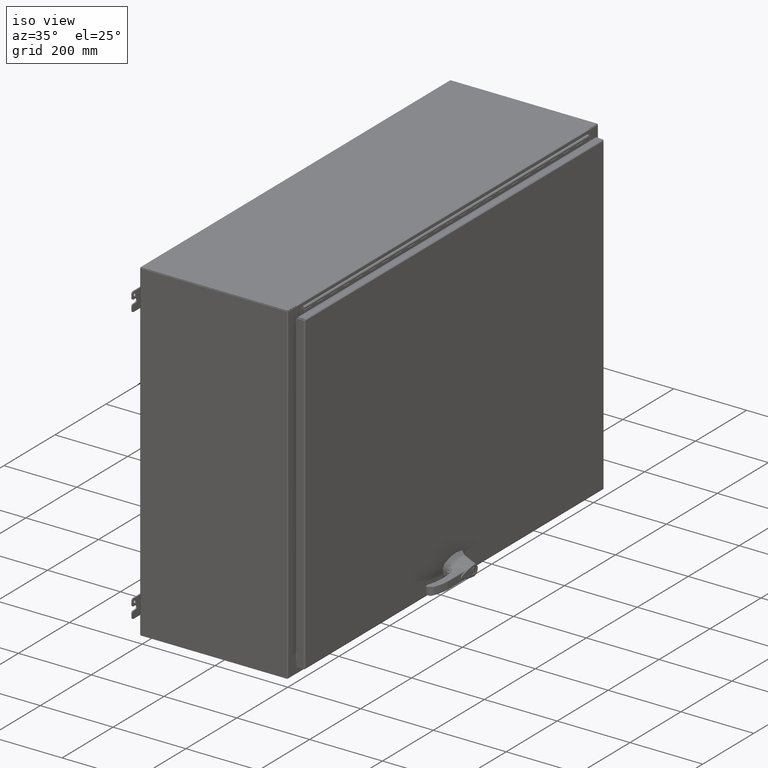
[diagram: clean part render]
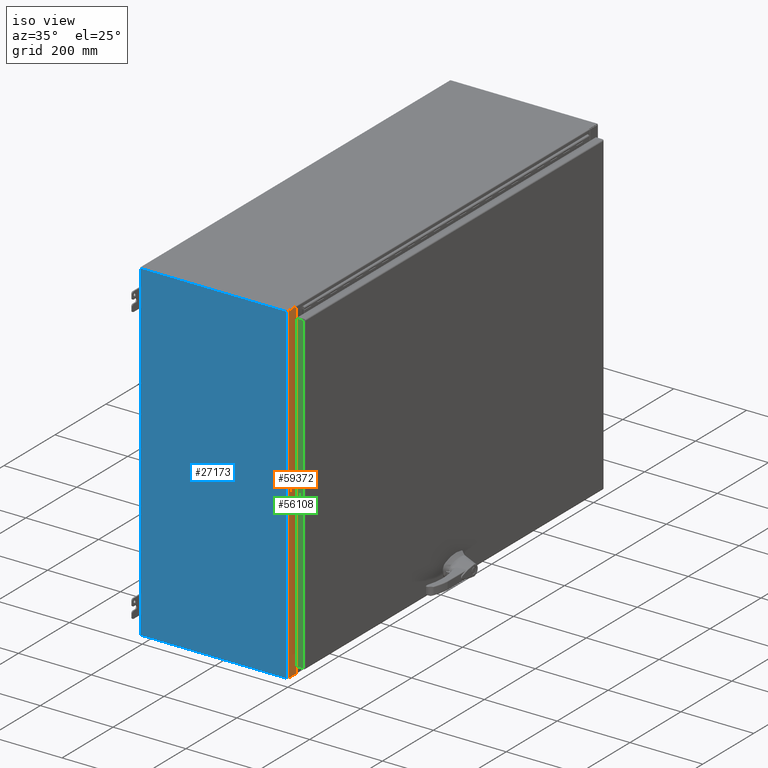
[diagram: same view with three faces highlighted in distinct colors, each labeled with its STEP entity id]
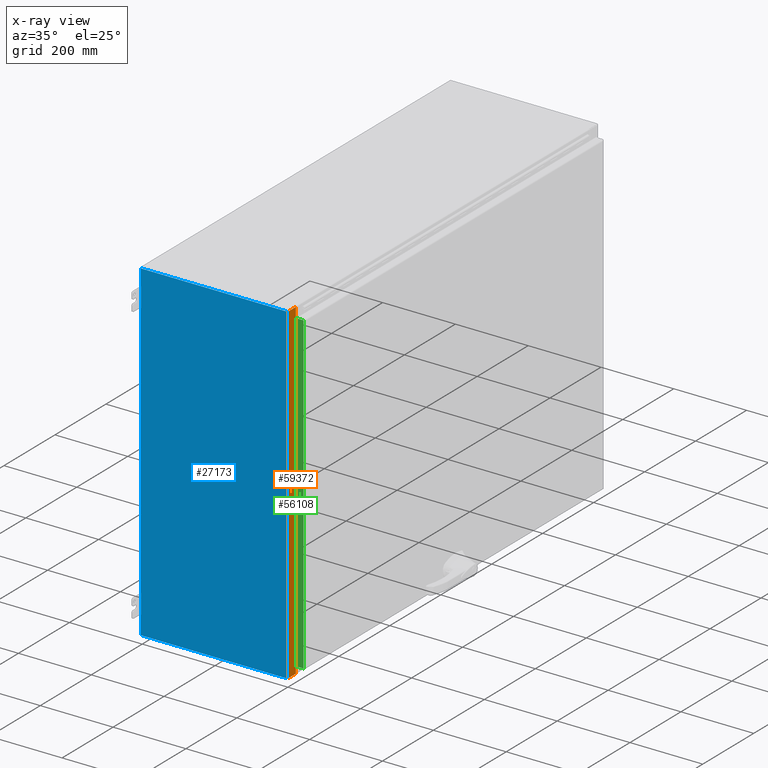
[diagram: x-ray of the same camera — body ghosted, the three highlighted faces saturated]
A machine part, iso view with three faces highlighted in distinct colors.
The next image is the same camera in x-ray (body ghosted, the three faces saturated) — at least one of them is partly hidden behind the body in this view.
Their STEP definitions:

[orange] entity #59372 — the highlighted planar face has unit normal (-1, 0, -0).
#3636 = PLANE ( 'NONE',  #91137 ) ;
#4003 = EDGE_CURVE ( 'NONE', #69563, #97916, #83977, .T. ) ;
#5111 = LINE ( 'NONE', #67505, #61262 ) ;
#6915 = CARTESIAN_POINT ( 'NONE',  ( 17.92800000000000082, -15.99999999999992184, -22.73300000000000054 ) ) ;
#10972 = DIRECTION ( 'NONE',  ( 0.0000000000000000000, -1.630517707358279892E-15, 1.000000000000000000 ) ) ;
#12631 = CARTESIAN_POINT ( 'NONE',  ( 17.92800000000000082, -15.99999999999992184, -23.89200000000000301 ) ) ;
#17831 = DIRECTION ( 'NONE',  ( 1.000000000000000000, -6.162975822039154730E-33, -1.004884120785579294E-47 ) ) ;
#24420 = EDGE_LOOP ( 'NONE', ( #36171, #38089, #41469, #37181 ) ) ;
#25821 = DIRECTION ( 'NONE',  ( -2.882398295858609985E-16, 0.0000000000000000000, -1.000000000000000000 ) ) ;
#26113 = CARTESIAN_POINT ( 'NONE',  ( -17.92800000000000438, -15.99999999999992184, -23.89200000000000301 ) ) ;
#32249 = EDGE_CURVE ( 'NONE', #69563, #32555, #77091, .T. ) ;
#32555 = VERTEX_POINT ( 'NONE', #26113 ) ;
#34648 = CARTESIAN_POINT ( 'NONE',  ( -17.92800000000000082, -15.99999999999992184, 24.00000000000000355 ) ) ;
#34725 = VECTOR ( 'NONE', #25821, 39.37007874015748143 ) ;
#36171 = ORIENTED_EDGE ( 'NONE', *, *, #4003, .F. ) ;
#37181 = ORIENTED_EDGE ( 'NONE', *, *, #84192, .T. ) ;
#38089 = ORIENTED_EDGE ( 'NONE', *, *, #32249, .T. ) ;
#41469 = ORIENTED_EDGE ( 'NONE', *, *, #51685, .F. ) ;
#50760 = CARTESIAN_POINT ( 'NONE',  ( 17.92800000000000082, -15.99999999999992184, -23.99999999999996092 ) ) ;
#51685 = EDGE_CURVE ( 'NONE', #101249, #32555, #5111, .T. ) ;
#53427 = CARTESIAN_POINT ( 'NONE',  ( -17.92800000000000082, -15.99999999999992362, -22.73300000000000054 ) ) ;
#59372 = ADVANCED_FACE ( 'NONE', ( #80179 ), #3636, .F. ) ;
#61262 = VECTOR ( 'NONE', #77408, 39.37007874015748143 ) ;
#62639 = VECTOR ( 'NONE', #68003, 39.37007874015748143 ) ;
#64926 = DIRECTION ( 'NONE',  ( 6.162975822039154730E-33, 1.000000000000000000, 1.630517707358279892E-15 ) ) ;
#67505 = CARTESIAN_POINT ( 'NONE',  ( -17.92800000000000082, -15.99999999999992184, -23.89200000000000301 ) ) ;
#68003 = DIRECTION ( 'NONE',  ( -3.491913689357999755E-16, 0.0000000000000000000, 1.000000000000000000 ) ) ;
#69563 = VERTEX_POINT ( 'NONE', #84419 ) ;
#77091 = LINE ( 'NONE', #34648, #34725 ) ;
#77408 = DIRECTION ( 'NONE',  ( -1.000000000000000000, 6.162975822039154730E-33, 1.004884120785579294E-47 ) ) ;
#80179 = FACE_OUTER_BOUND ( 'NONE', #24420, .T. ) ;
#81229 = VECTOR ( 'NONE', #17831, 39.37007874015748143 ) ;
#83977 = LINE ( 'NONE', #53427, #81229 ) ;
#84192 = EDGE_CURVE ( 'NONE', #101249, #97916, #95442, .T. ) ;
#84419 = CARTESIAN_POINT ( 'NONE',  ( -17.92800000000000438, -15.99999999999992184, -22.73300000000000054 ) ) ;
#91137 = AXIS2_PLACEMENT_3D ( 'NONE', #107391, #64926, #10972 ) ;
#95442 = LINE ( 'NONE', #50760, #62639 ) ;
#97916 = VERTEX_POINT ( 'NONE', #6915 ) ;
#101249 = VERTEX_POINT ( 'NONE', #12631 ) ;
#107391 = CARTESIAN_POINT ( 'NONE',  ( -17.92800000000000082, -15.99999999999992184, -24.00000000000000355 ) ) ;

[blue] entity #27173 — the highlighted planar face has unit normal (0, 1, 0).
#154 = FACE_OUTER_BOUND ( 'NONE', #27118, .T. ) ;
#2480 = CARTESIAN_POINT ( 'NONE',  ( 17.92800000000000082, -15.89200000000003854, -24.00000000000000355 ) ) ;
#3178 = VERTEX_POINT ( 'NONE', #52788 ) ;
#3849 = LINE ( 'NONE', #65973, #12089 ) ;
#5047 = DIRECTION ( 'NONE',  ( 3.047576967496829904E-17, -1.000000000000000000, 1.064187573217432001E-32 ) ) ;
#8612 = DIRECTION ( 'NONE',  ( -3.047576967497040062E-17, 1.000000000000000000, 8.784330657611418981E-33 ) ) ;
#12089 = VECTOR ( 'NONE', #66721, 39.37007874015748143 ) ;
#12608 = VECTOR ( 'NONE', #5047, 39.37007874015748143 ) ;
#14721 = VERTEX_POINT ( 'NONE', #2480 ) ;
#16029 = VECTOR ( 'NONE', #8612, 39.37007874015748143 ) ;
#18125 = LINE ( 'NONE', #57511, #12608 ) ;
#27118 = EDGE_LOOP ( 'NONE', ( #83519, #67171, #76278, #73723 ) ) ;
#27173 = ADVANCED_FACE ( 'NONE', ( #154 ), #74611, .F. ) ;
#29886 = DIRECTION ( 'NONE',  ( -2.748862091904639819E-35, -9.019828280700070218E-19, 1.000000000000000000 ) ) ;
#36608 = VECTOR ( 'NONE', #110721, 39.37007874015748143 ) ;
#39339 = LINE ( 'NONE', #84721, #36608 ) ;
#47118 = DIRECTION ( 'NONE',  ( 0.0000000000000000000, -1.000000000000000000, -9.019828280700070218E-19 ) ) ;
#51593 = CARTESIAN_POINT ( 'NONE',  ( 17.92800000000000082, -0.1080000000000033433, -24.00000000000000355 ) ) ;
#52788 = CARTESIAN_POINT ( 'NONE',  ( -17.92800000000000082, -0.1080000000000033433, -23.99999999999997868 ) ) ;
#53559 = EDGE_CURVE ( 'NONE', #69339, #14721, #18125, .T. ) ;
#57511 = CARTESIAN_POINT ( 'NONE',  ( 17.92800000000000082, -0.07199999999992755251, -24.00000000000000355 ) ) ;
#65475 = CARTESIAN_POINT ( 'NONE',  ( -17.92800000000000082, -1.748382715945130038E-14, -24.00000000000000355 ) ) ;
#65973 = CARTESIAN_POINT ( 'NONE',  ( -17.92800000000000082, -15.89200000000003854, -24.00000000000000355 ) ) ;
#66721 = DIRECTION ( 'NONE',  ( 1.000000000000000000, -2.479426403630582698E-53, 2.748862091904639819E-35 ) ) ;
#67171 = ORIENTED_EDGE ( 'NONE', *, *, #76084, .T. ) ;
#68583 = CARTESIAN_POINT ( 'NONE',  ( -17.92800000000000082, -15.89200000000003854, -23.99999999999997868 ) ) ;
#69339 = VERTEX_POINT ( 'NONE', #51593 ) ;
#73723 = ORIENTED_EDGE ( 'NONE', *, *, #53559, .T. ) ;
#74611 = PLANE ( 'NONE',  #93279 ) ;
#76084 = EDGE_CURVE ( 'NONE', #87510, #3178, #91395, .T. ) ;
#76278 = ORIENTED_EDGE ( 'NONE', *, *, #100622, .F. ) ;
#83519 = ORIENTED_EDGE ( 'NONE', *, *, #97734, .F. ) ;
#84721 = CARTESIAN_POINT ( 'NONE',  ( 17.92800000000000082, -0.1080000000000110177, -24.00000000000000355 ) ) ;
#87510 = VERTEX_POINT ( 'NONE', #68583 ) ;
#91395 = LINE ( 'NONE', #94811, #16029 ) ;
#93279 = AXIS2_PLACEMENT_3D ( 'NONE', #65475, #29886, #47118 ) ;
#94811 = CARTESIAN_POINT ( 'NONE',  ( -17.92800000000001148, -0.07200000000008267842, -23.99999999999995737 ) ) ;
#97734 = EDGE_CURVE ( 'NONE', #87510, #14721, #3849, .T. ) ;
#100622 = EDGE_CURVE ( 'NONE', #69339, #3178, #39339, .T. ) ;
#110721 = DIRECTION ( 'NONE',  ( -1.000000000000000000, 0.0000000000000000000, 0.0000000000000000000 ) ) ;

[green] entity #56108 — the highlighted planar face has unit normal (-0, -1, 0).
#2366 = CARTESIAN_POINT ( 'NONE',  ( 16.94300000000000850, -17.08999999999996433, -23.12549999999999883 ) ) ;
#3188 = VECTOR ( 'NONE', #70667, 39.37007874015748143 ) ;
#13203 = DIRECTION ( 'NONE',  ( -0.0000000000000000000, -1.000000000000000000, -6.123233995736769734E-17 ) ) ;
#17679 = DIRECTION ( 'NONE',  ( 1.000000000000000000, -0.0000000000000000000, 0.0000000000000000000 ) ) ;
#22365 = CARTESIAN_POINT ( 'NONE',  ( -17.05292125984251683, -16.35799999999996146, -23.12549999999999883 ) ) ;
#24767 = ORIENTED_EDGE ( 'NONE', *, *, #102075, .T. ) ;
#25174 = LINE ( 'NONE', #54572, #3188 ) ;
#26001 = VERTEX_POINT ( 'NONE', #59940 ) ;
#39078 = VECTOR ( 'NONE', #17679, 39.37007874015748143 ) ;
#39932 = VECTOR ( 'NONE', #55201, 39.37007874015748143 ) ;
#42381 = AXIS2_PLACEMENT_3D ( 'NONE', #43918, #77952, #86790 ) ;
#43918 = CARTESIAN_POINT ( 'NONE',  ( 16.94300000000000850, -17.14749999999996177, -23.12549999999999883 ) ) ;
#47796 = ORIENTED_EDGE ( 'NONE', *, *, #72469, .T. ) ;
#54572 = CARTESIAN_POINT ( 'NONE',  ( -17.05292125984251328, -17.14749999999996177, -23.12549999999999883 ) ) ;
#55201 = DIRECTION ( 'NONE',  ( 1.000000000000000000, -3.749399456654639914E-33, -6.123233995736769734E-17 ) ) ;
#56108 = ADVANCED_FACE ( 'NONE', ( #61226 ), #103592, .T. ) ;
#59940 = CARTESIAN_POINT ( 'NONE',  ( -17.05292125984251328, -17.08999999999996078, -23.12549999999999883 ) ) ;
#60935 = CARTESIAN_POINT ( 'NONE',  ( 16.94300000000000850, -16.35799999999996146, -23.12549999999999883 ) ) ;
#61226 = FACE_OUTER_BOUND ( 'NONE', #100140, .T. ) ;
#70667 = DIRECTION ( 'NONE',  ( 0.0000000000000000000, 1.000000000000000000, 6.123233995736769734E-17 ) ) ;
#72422 = ORIENTED_EDGE ( 'NONE', *, *, #105304, .T. ) ;
#72444 = VERTEX_POINT ( 'NONE', #22365 ) ;
#72469 = EDGE_CURVE ( 'NONE', #74706, #104559, #91989, .T. ) ;
#74706 = VERTEX_POINT ( 'NONE', #105063 ) ;
#75221 = CARTESIAN_POINT ( 'NONE',  ( 16.99092125984252988, -17.08999999999996078, -23.12549999999999883 ) ) ;
#77952 = DIRECTION ( 'NONE',  ( 0.0000000000000000000, 6.123233995736769734E-17, -1.000000000000000000 ) ) ;
#83622 = CARTESIAN_POINT ( 'NONE',  ( 16.99092125984252988, -17.14749999999996177, -23.12549999999999883 ) ) ;
#86485 = LINE ( 'NONE', #2366, #39932 ) ;
#86790 = DIRECTION ( 'NONE',  ( 0.0000000000000000000, 1.000000000000000000, 6.123233995736769734E-17 ) ) ;
#91123 = LINE ( 'NONE', #60935, #39078 ) ;
#91989 = LINE ( 'NONE', #83622, #94731 ) ;
#94731 = VECTOR ( 'NONE', #13203, 39.37007874015748143 ) ;
#100140 = EDGE_LOOP ( 'NONE', ( #24767, #72422, #47796, #112947 ) ) ;
#102075 = EDGE_CURVE ( 'NONE', #26001, #72444, #25174, .T. ) ;
#102934 = EDGE_CURVE ( 'NONE', #26001, #104559, #86485, .T. ) ;
#103592 = PLANE ( 'NONE',  #42381 ) ;
#104559 = VERTEX_POINT ( 'NONE', #75221 ) ;
#105063 = CARTESIAN_POINT ( 'NONE',  ( 16.99092125984253343, -16.35799999999996146, -23.12549999999999883 ) ) ;
#105304 = EDGE_CURVE ( 'NONE', #72444, #74706, #91123, .T. ) ;
#112947 = ORIENTED_EDGE ( 'NONE', *, *, #102934, .F. ) ;